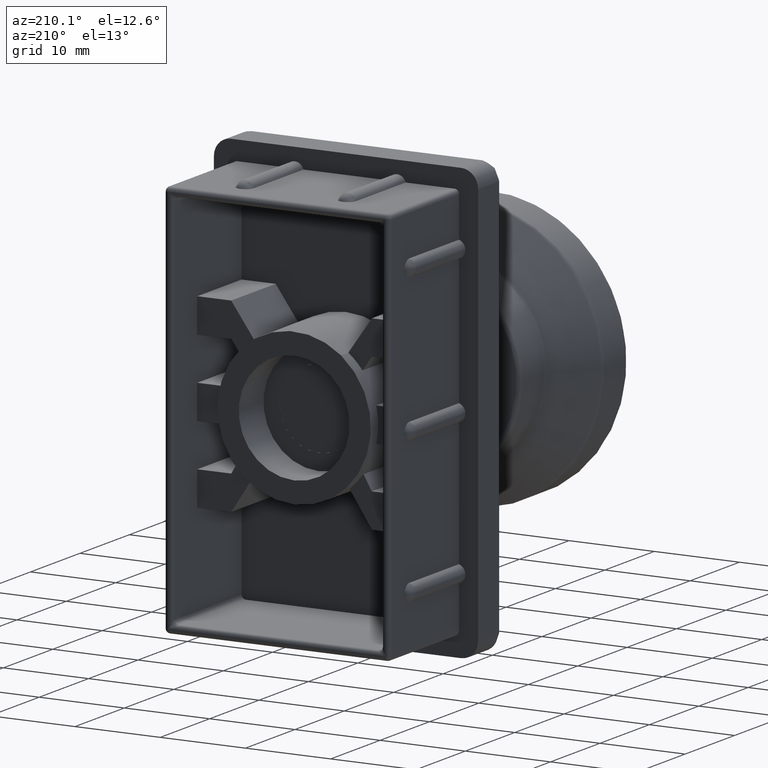
[diagram: clean part render]
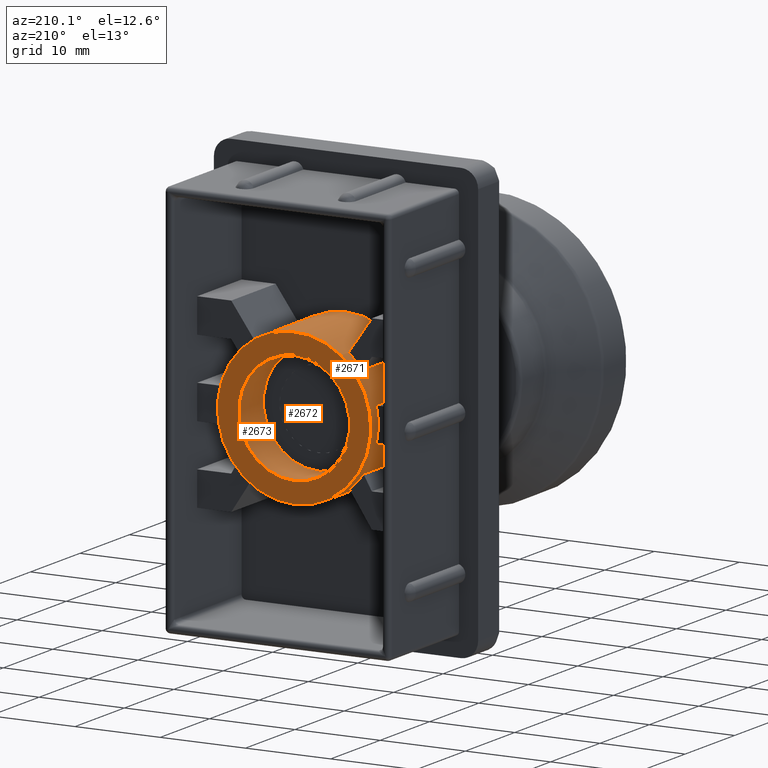
[diagram: same view with one multi-face feature highlighted, each face labeled with its STEP entity id]
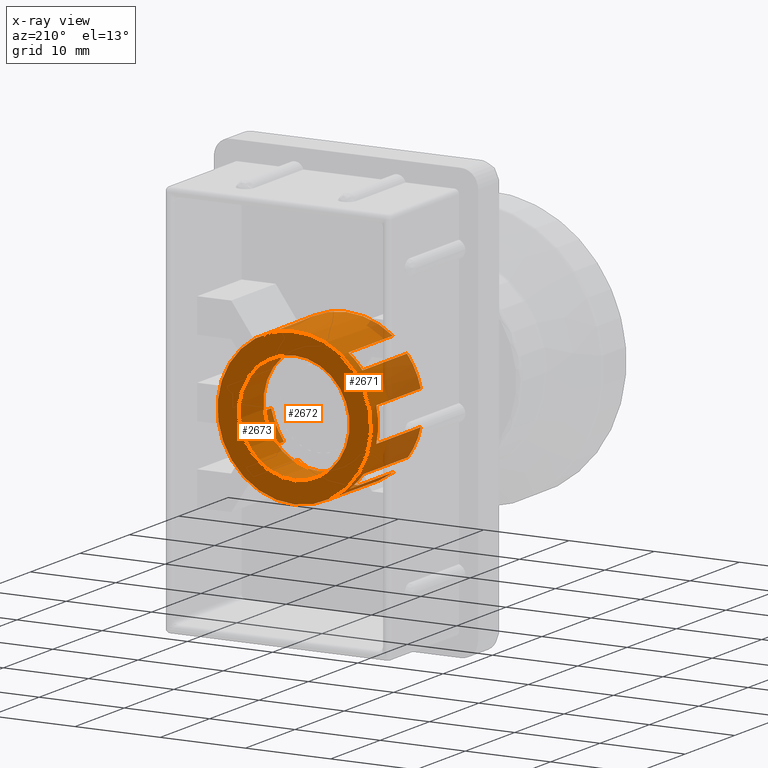
[diagram: x-ray of the same camera — body ghosted, the whole feature saturated]
A machine part, auxiliary view. The highlighted faces form ONE feature: a stepped (counterbored) hole: 2 coaxial cylindrical walls of radii 6.5 -> 9 mm joined by 1 annular planar shoulder face(s). The faces share edges in the B-rep.
The next image is the same camera in x-ray: the body ghosted and the whole hole feature saturated, so the bore chain is visible through the body.
Their STEP definitions:
[1] entity #2671 (Cylinder):
#79=FACE_BOUND('',#588,.T.);
#145=CIRCLE('',#2820,9.);
#180=CIRCLE('',#2883,9.);
#181=CIRCLE('',#2889,9.);
#182=CIRCLE('',#2895,9.);
#183=CIRCLE('',#2899,9.);
#184=CIRCLE('',#2901,9.);
#185=CIRCLE('',#2905,9.);
#186=CIRCLE('',#2909,9.);
#187=CIRCLE('',#2915,9.);
#188=CIRCLE('',#2919,9.);
#189=CIRCLE('',#2921,9.);
#190=CIRCLE('',#2923,9.);
#191=CIRCLE('',#2924,9.);
#415=FACE_OUTER_BOUND('',#587,.T.);
#587=EDGE_LOOP('',(#2431,#2432,#2433,#2434,#2435,#2436,#2437,#2438,#2439,
#2440,#2441,#2442,#2443,#2444,#2445,#2446,#2447,#2448,#2449,#2450,#2451,
#2452,#2453,#2454));
#588=EDGE_LOOP('',(#2455));
#762=LINE('',#5343,#978);
#764=LINE('',#5347,#980);
#766=LINE('',#5351,#982);
#769=LINE('',#5358,#985);
#776=LINE('',#5374,#992);
#783=LINE('',#5388,#999);
#791=LINE('',#5409,#1007);
#794=LINE('',#5415,#1010);
#797=LINE('',#5423,#1013);
#801=LINE('',#5431,#1017);
#807=LINE('',#5444,#1023);
#811=LINE('',#5453,#1027);
#978=VECTOR('',#3507,9.);
#980=VECTOR('',#3511,9.);
#982=VECTOR('',#3515,9.);
#985=VECTOR('',#3520,9.);
#992=VECTOR('',#3537,9.);
#999=VECTOR('',#3546,9.);
#1007=VECTOR('',#3572,9.);
#1010=VECTOR('',#3577,9.);
#1013=VECTOR('',#3586,9.);
#1017=VECTOR('',#3592,9.);
#1023=VECTOR('',#3608,9.);
#1027=VECTOR('',#3614,9.);
#1246=VERTEX_POINT('',#4540);
#1247=VERTEX_POINT('',#4542);
#1295=VERTEX_POINT('',#5336);
#1296=VERTEX_POINT('',#5337);
#1297=VERTEX_POINT('',#5342);
#1298=VERTEX_POINT('',#5346);
#1299=VERTEX_POINT('',#5350);
#1301=VERTEX_POINT('',#5356);
#1302=VERTEX_POINT('',#5357);
#1305=VERTEX_POINT('',#5372);
#1306=VERTEX_POINT('',#5373);
#1310=VERTEX_POINT('',#5382);
#1312=VERTEX_POINT('',#5386);
#1314=VERTEX_POINT('',#5401);
#1315=VERTEX_POINT('',#5407);
#1316=VERTEX_POINT('',#5408);
#1317=VERTEX_POINT('',#5413);
#1318=VERTEX_POINT('',#5414);
#1319=VERTEX_POINT('',#5421);
#1320=VERTEX_POINT('',#5422);
#1323=VERTEX_POINT('',#5430);
#1325=VERTEX_POINT('',#5443);
#1327=VERTEX_POINT('',#5449);
#1329=VERTEX_POINT('',#5452);
#1331=VERTEX_POINT('',#5470);
#1557=EDGE_CURVE('',#1247,#1246,#145,.T.);
#1643=EDGE_CURVE('',#1295,#1296,#180,.T.);
#1646=EDGE_CURVE('',#1297,#1295,#762,.T.);
#1648=EDGE_CURVE('',#1296,#1298,#764,.T.);
#1650=EDGE_CURVE('',#1246,#1299,#766,.T.);
#1653=EDGE_CURVE('',#1301,#1302,#769,.T.);
#1657=EDGE_CURVE('',#1299,#1301,#181,.T.);
#1661=EDGE_CURVE('',#1305,#1306,#776,.T.);
#1668=EDGE_CURVE('',#1310,#1312,#783,.T.);
#1669=EDGE_CURVE('',#1312,#1305,#182,.T.);
#1677=EDGE_CURVE('',#1306,#1314,#183,.T.);
#1678=EDGE_CURVE('',#1302,#1297,#184,.T.);
#1679=EDGE_CURVE('',#1315,#1316,#791,.T.);
#1682=EDGE_CURVE('',#1317,#1318,#794,.T.);
#1685=EDGE_CURVE('',#1316,#1317,#185,.T.);
#1686=EDGE_CURVE('',#1319,#1320,#797,.T.);
#1690=EDGE_CURVE('',#1323,#1247,#801,.T.);
#1693=EDGE_CURVE('',#1320,#1323,#186,.T.);
#1697=EDGE_CURVE('',#1314,#1325,#807,.T.);
#1701=EDGE_CURVE('',#1329,#1327,#811,.T.);
#1704=EDGE_CURVE('',#1325,#1329,#187,.T.);
#1708=EDGE_CURVE('',#1298,#1310,#188,.T.);
#1709=EDGE_CURVE('',#1318,#1319,#189,.T.);
#1710=EDGE_CURVE('',#1327,#1315,#190,.T.);
#1711=EDGE_CURVE('',#1331,#1331,#191,.T.);
#2431=ORIENTED_EDGE('',*,*,#1648,.T.);
#2432=ORIENTED_EDGE('',*,*,#1708,.T.);
#2433=ORIENTED_EDGE('',*,*,#1668,.T.);
#2434=ORIENTED_EDGE('',*,*,#1669,.T.);
#2435=ORIENTED_EDGE('',*,*,#1661,.T.);
#2436=ORIENTED_EDGE('',*,*,#1677,.T.);
#2437=ORIENTED_EDGE('',*,*,#1697,.T.);
#2438=ORIENTED_EDGE('',*,*,#1704,.T.);
#2439=ORIENTED_EDGE('',*,*,#1701,.T.);
#2440=ORIENTED_EDGE('',*,*,#1710,.T.);
#2441=ORIENTED_EDGE('',*,*,#1679,.T.);
#2442=ORIENTED_EDGE('',*,*,#1685,.T.);
#2443=ORIENTED_EDGE('',*,*,#1682,.T.);
#2444=ORIENTED_EDGE('',*,*,#1709,.T.);
#2445=ORIENTED_EDGE('',*,*,#1686,.T.);
#2446=ORIENTED_EDGE('',*,*,#1693,.T.);
#2447=ORIENTED_EDGE('',*,*,#1690,.T.);
#2448=ORIENTED_EDGE('',*,*,#1557,.T.);
#2449=ORIENTED_EDGE('',*,*,#1650,.T.);
#2450=ORIENTED_EDGE('',*,*,#1657,.T.);
#2451=ORIENTED_EDGE('',*,*,#1653,.T.);
#2452=ORIENTED_EDGE('',*,*,#1678,.T.);
#2453=ORIENTED_EDGE('',*,*,#1646,.T.);
#2454=ORIENTED_EDGE('',*,*,#1643,.T.);
#2455=ORIENTED_EDGE('',*,*,#1711,.T.);
#2524=CYLINDRICAL_SURFACE('',#2922,9.);
#2671=ADVANCED_FACE('',(#415,#79),#2524,.T.);
#2820=AXIS2_PLACEMENT_3D('',#4543,#3340,#3341);
#2883=AXIS2_PLACEMENT_3D('',#5338,#3501,#3502);
#2889=AXIS2_PLACEMENT_3D('',#5365,#3526,#3527);
#2895=AXIS2_PLACEMENT_3D('',#5390,#3549,#3550);
#2899=AXIS2_PLACEMENT_3D('',#5403,#3564,#3565);
#2901=AXIS2_PLACEMENT_3D('',#5405,#3568,#3569);
#2905=AXIS2_PLACEMENT_3D('',#5419,#3582,#3583);
#2909=AXIS2_PLACEMENT_3D('',#5436,#3597,#3598);
#2915=AXIS2_PLACEMENT_3D('',#5458,#3619,#3620);
#2919=AXIS2_PLACEMENT_3D('',#5465,#3630,#3631);
#2921=AXIS2_PLACEMENT_3D('',#5467,#3634,#3635);
#2922=AXIS2_PLACEMENT_3D('',#5468,#3636,#3637);
#2923=AXIS2_PLACEMENT_3D('',#5469,#3638,#3639);
#2924=AXIS2_PLACEMENT_3D('',#5471,#3640,#3641);
#3340=DIRECTION('center_axis',(0.,-1.,0.));
#3341=DIRECTION('ref_axis',(-1.,0.,0.));
#3501=DIRECTION('center_axis',(0.,-1.,0.));
#3502=DIRECTION('ref_axis',(-1.,0.,0.));
#3507=DIRECTION('',(0.,-1.,0.));
#3511=DIRECTION('',(0.,1.,0.));
#3515=DIRECTION('',(0.,-1.,0.));
#3520=DIRECTION('',(0.,1.,0.));
#3526=DIRECTION('center_axis',(0.,-1.,0.));
#3527=DIRECTION('ref_axis',(-1.,0.,0.));
#3537=DIRECTION('',(0.,1.,0.));
#3546=DIRECTION('',(0.,-1.,0.));
#3549=DIRECTION('center_axis',(0.,-1.,0.));
#3550=DIRECTION('ref_axis',(-1.,0.,0.));
#3564=DIRECTION('center_axis',(0.,-1.,0.));
#3565=DIRECTION('ref_axis',(-1.,0.,0.));
#3568=DIRECTION('center_axis',(0.,-1.,0.));
#3569=DIRECTION('ref_axis',(-1.,0.,0.));
#3572=DIRECTION('',(0.,-1.,0.));
#3577=DIRECTION('',(0.,1.,0.));
#3582=DIRECTION('center_axis',(0.,-1.,0.));
#3583=DIRECTION('ref_axis',(-1.,0.,0.));
#3586=DIRECTION('',(0.,-1.,0.));
#3592=DIRECTION('',(0.,1.,0.));
#3597=DIRECTION('center_axis',(0.,-1.,0.));
#3598=DIRECTION('ref_axis',(-1.,0.,0.));
#3608=DIRECTION('',(0.,-1.,0.));
#3614=DIRECTION('',(0.,1.,0.));
#3619=DIRECTION('center_axis',(0.,-1.,0.));
#3620=DIRECTION('ref_axis',(-1.,0.,0.));
#3630=DIRECTION('center_axis',(0.,-1.,0.));
#3631=DIRECTION('ref_axis',(-1.,0.,0.));
#3634=DIRECTION('center_axis',(0.,-1.,0.));
#3635=DIRECTION('ref_axis',(-1.,0.,0.));
#3636=DIRECTION('center_axis',(0.,1.,0.));
#3637=DIRECTION('ref_axis',(-1.,0.,0.));
#3638=DIRECTION('center_axis',(0.,-1.,0.));
#3639=DIRECTION('ref_axis',(-1.,0.,0.));
#3640=DIRECTION('center_axis',(0.,1.,0.));
#3641=DIRECTION('ref_axis',(-1.,0.,0.));
#4540=CARTESIAN_POINT('',(16.1208311818235,14.,-18.743173214267));
#4542=CARTESIAN_POINT('',(16.1208311818235,14.,-7.75682678573301));
#4543=CARTESIAN_POINT('Origin',(23.25,14.,-13.25));
#5336=CARTESIAN_POINT('',(21.25,5.,-22.0249643873921));
#5337=CARTESIAN_POINT('',(25.25,5.,-22.0249643873921));
#5338=CARTESIAN_POINT('Origin',(23.25,5.,-13.25));
#5342=CARTESIAN_POINT('',(21.25,14.,-22.0249643873921));
#5343=CARTESIAN_POINT('',(21.25,0.,-22.0249643873921));
#5346=CARTESIAN_POINT('',(25.25,14.,-22.0249643873921));
#5347=CARTESIAN_POINT('',(25.25,0.,-22.0249643873921));
#5350=CARTESIAN_POINT('',(16.1208311818235,5.,-18.743173214267));
#5351=CARTESIAN_POINT('',(16.1208311818235,0.,-18.743173214267));
#5356=CARTESIAN_POINT('',(17.789048978354,5.,-20.4038810403293));
#5357=CARTESIAN_POINT('',(17.789048978354,14.,-20.4038810403293));
#5358=CARTESIAN_POINT('',(17.789048978354,0.,-20.4038810403293));
#5365=CARTESIAN_POINT('Origin',(23.25,5.,-13.25));
#5372=CARTESIAN_POINT('',(30.2812682841136,5.,-18.8679414661261));
#5373=CARTESIAN_POINT('',(30.2812682841136,14.,-18.8679414661261));
#5374=CARTESIAN_POINT('',(30.2812682841136,0.,-18.8679414661261));
#5382=CARTESIAN_POINT('',(28.5685464950367,14.,-20.5103762423261));
#5386=CARTESIAN_POINT('',(28.5685464950367,5.,-20.5103762423261));
#5388=CARTESIAN_POINT('',(28.5685464950367,0.,-20.5103762423261));
#5390=CARTESIAN_POINT('Origin',(23.25,5.,-13.25));
#5401=CARTESIAN_POINT('',(30.2812682841136,14.,-7.63205853387392));
#5403=CARTESIAN_POINT('Origin',(23.25,14.,-13.25));
#5405=CARTESIAN_POINT('Origin',(23.25,14.,-13.25));
#5407=CARTESIAN_POINT('',(25.25,14.,-4.47503561260787));
#5408=CARTESIAN_POINT('',(25.25,5.,-4.47503561260787));
#5409=CARTESIAN_POINT('',(25.25,0.,-4.47503561260787));
#5413=CARTESIAN_POINT('',(21.25,5.,-4.47503561260787));
#5414=CARTESIAN_POINT('',(21.25,14.,-4.47503561260787));
#5415=CARTESIAN_POINT('',(21.25,0.,-4.47503561260787));
#5419=CARTESIAN_POINT('Origin',(23.25,5.,-13.25));
#5421=CARTESIAN_POINT('',(17.789048978354,14.,-6.09611895967068));
#5422=CARTESIAN_POINT('',(17.789048978354,5.,-6.09611895967068));
#5423=CARTESIAN_POINT('',(17.789048978354,0.,-6.09611895967068));
#5430=CARTESIAN_POINT('',(16.1208311818235,5.,-7.75682678573301));
#5431=CARTESIAN_POINT('',(16.1208311818235,0.,-7.75682678573301));
#5436=CARTESIAN_POINT('Origin',(23.25,5.,-13.25));
#5443=CARTESIAN_POINT('',(30.2812682841136,5.,-7.63205853387392));
#5444=CARTESIAN_POINT('',(30.2812682841136,0.,-7.63205853387392));
#5449=CARTESIAN_POINT('',(28.5685464950367,14.,-5.98962375767392));
#5452=CARTESIAN_POINT('',(28.5685464950367,5.,-5.98962375767392));
#5453=CARTESIAN_POINT('',(28.5685464950367,0.,-5.98962375767392));
#5458=CARTESIAN_POINT('Origin',(23.25,5.,-13.25));
#5465=CARTESIAN_POINT('Origin',(23.25,14.,-13.25));
#5467=CARTESIAN_POINT('Origin',(23.25,14.,-13.25));
#5468=CARTESIAN_POINT('Origin',(23.25,0.,-13.25));
#5469=CARTESIAN_POINT('Origin',(23.25,14.,-13.25));
#5470=CARTESIAN_POINT('',(32.25,3.5,-13.25));
#5471=CARTESIAN_POINT('Origin',(23.25,3.5,-13.25));
[2] entity #2673 (Cylinder):
#81=FACE_BOUND('',#592,.T.);
#192=CIRCLE('',#2926,6.5);
#193=CIRCLE('',#2928,6.5);
#417=FACE_OUTER_BOUND('',#591,.T.);
#591=EDGE_LOOP('',(#2458));
#592=EDGE_LOOP('',(#2459));
#1332=VERTEX_POINT('',#5473);
#1333=VERTEX_POINT('',#5476);
#1712=EDGE_CURVE('',#1332,#1332,#192,.T.);
#1713=EDGE_CURVE('',#1333,#1333,#193,.T.);
#2458=ORIENTED_EDGE('',*,*,#1712,.T.);
#2459=ORIENTED_EDGE('',*,*,#1713,.T.);
#2525=CYLINDRICAL_SURFACE('',#2927,6.5);
#2673=ADVANCED_FACE('',(#417,#81),#2525,.F.);
#2926=AXIS2_PLACEMENT_3D('',#5474,#3644,#3645);
#2927=AXIS2_PLACEMENT_3D('',#5475,#3646,#3647);
#2928=AXIS2_PLACEMENT_3D('',#5477,#3648,#3649);
#3644=DIRECTION('center_axis',(0.,-1.,0.));
#3645=DIRECTION('ref_axis',(-1.,0.,0.));
#3646=DIRECTION('center_axis',(0.,1.,0.));
#3647=DIRECTION('ref_axis',(-1.,0.,0.));
#3648=DIRECTION('center_axis',(0.,1.,0.));
#3649=DIRECTION('ref_axis',(-1.,0.,0.));
#5473=CARTESIAN_POINT('',(29.75,3.5,-13.25));
#5474=CARTESIAN_POINT('Origin',(23.25,3.5,-13.25));
#5475=CARTESIAN_POINT('Origin',(23.25,0.,-13.25));
#5476=CARTESIAN_POINT('',(29.75,8.5,-13.25));
#5477=CARTESIAN_POINT('Origin',(23.25,8.5,-13.25));
[3] entity #2672 (Plane):
#80=FACE_BOUND('',#590,.T.);
#191=CIRCLE('',#2924,9.);
#192=CIRCLE('',#2926,6.5);
#266=PLANE('',#2925);
#416=FACE_OUTER_BOUND('',#589,.T.);
#589=EDGE_LOOP('',(#2456));
#590=EDGE_LOOP('',(#2457));
#1331=VERTEX_POINT('',#5470);
#1332=VERTEX_POINT('',#5473);
#1711=EDGE_CURVE('',#1331,#1331,#191,.T.);
#1712=EDGE_CURVE('',#1332,#1332,#192,.T.);
#2456=ORIENTED_EDGE('',*,*,#1711,.F.);
#2457=ORIENTED_EDGE('',*,*,#1712,.F.);
#2672=ADVANCED_FACE('',(#416,#80),#266,.F.);
#2924=AXIS2_PLACEMENT_3D('',#5471,#3640,#3641);
#2925=AXIS2_PLACEMENT_3D('',#5472,#3642,#3643);
#2926=AXIS2_PLACEMENT_3D('',#5474,#3644,#3645);
#3640=DIRECTION('center_axis',(0.,1.,0.));
#3641=DIRECTION('ref_axis',(-1.,0.,0.));
#3642=DIRECTION('center_axis',(0.,1.,0.));
#3643=DIRECTION('ref_axis',(0.,0.,1.));
#3644=DIRECTION('center_axis',(0.,-1.,0.));
#3645=DIRECTION('ref_axis',(-1.,0.,0.));
#5470=CARTESIAN_POINT('',(32.25,3.5,-13.25));
#5471=CARTESIAN_POINT('Origin',(23.25,3.5,-13.25));
#5472=CARTESIAN_POINT('Origin',(23.25,3.5,-13.25));
#5473=CARTESIAN_POINT('',(29.75,3.5,-13.25));
#5474=CARTESIAN_POINT('Origin',(23.25,3.5,-13.25));